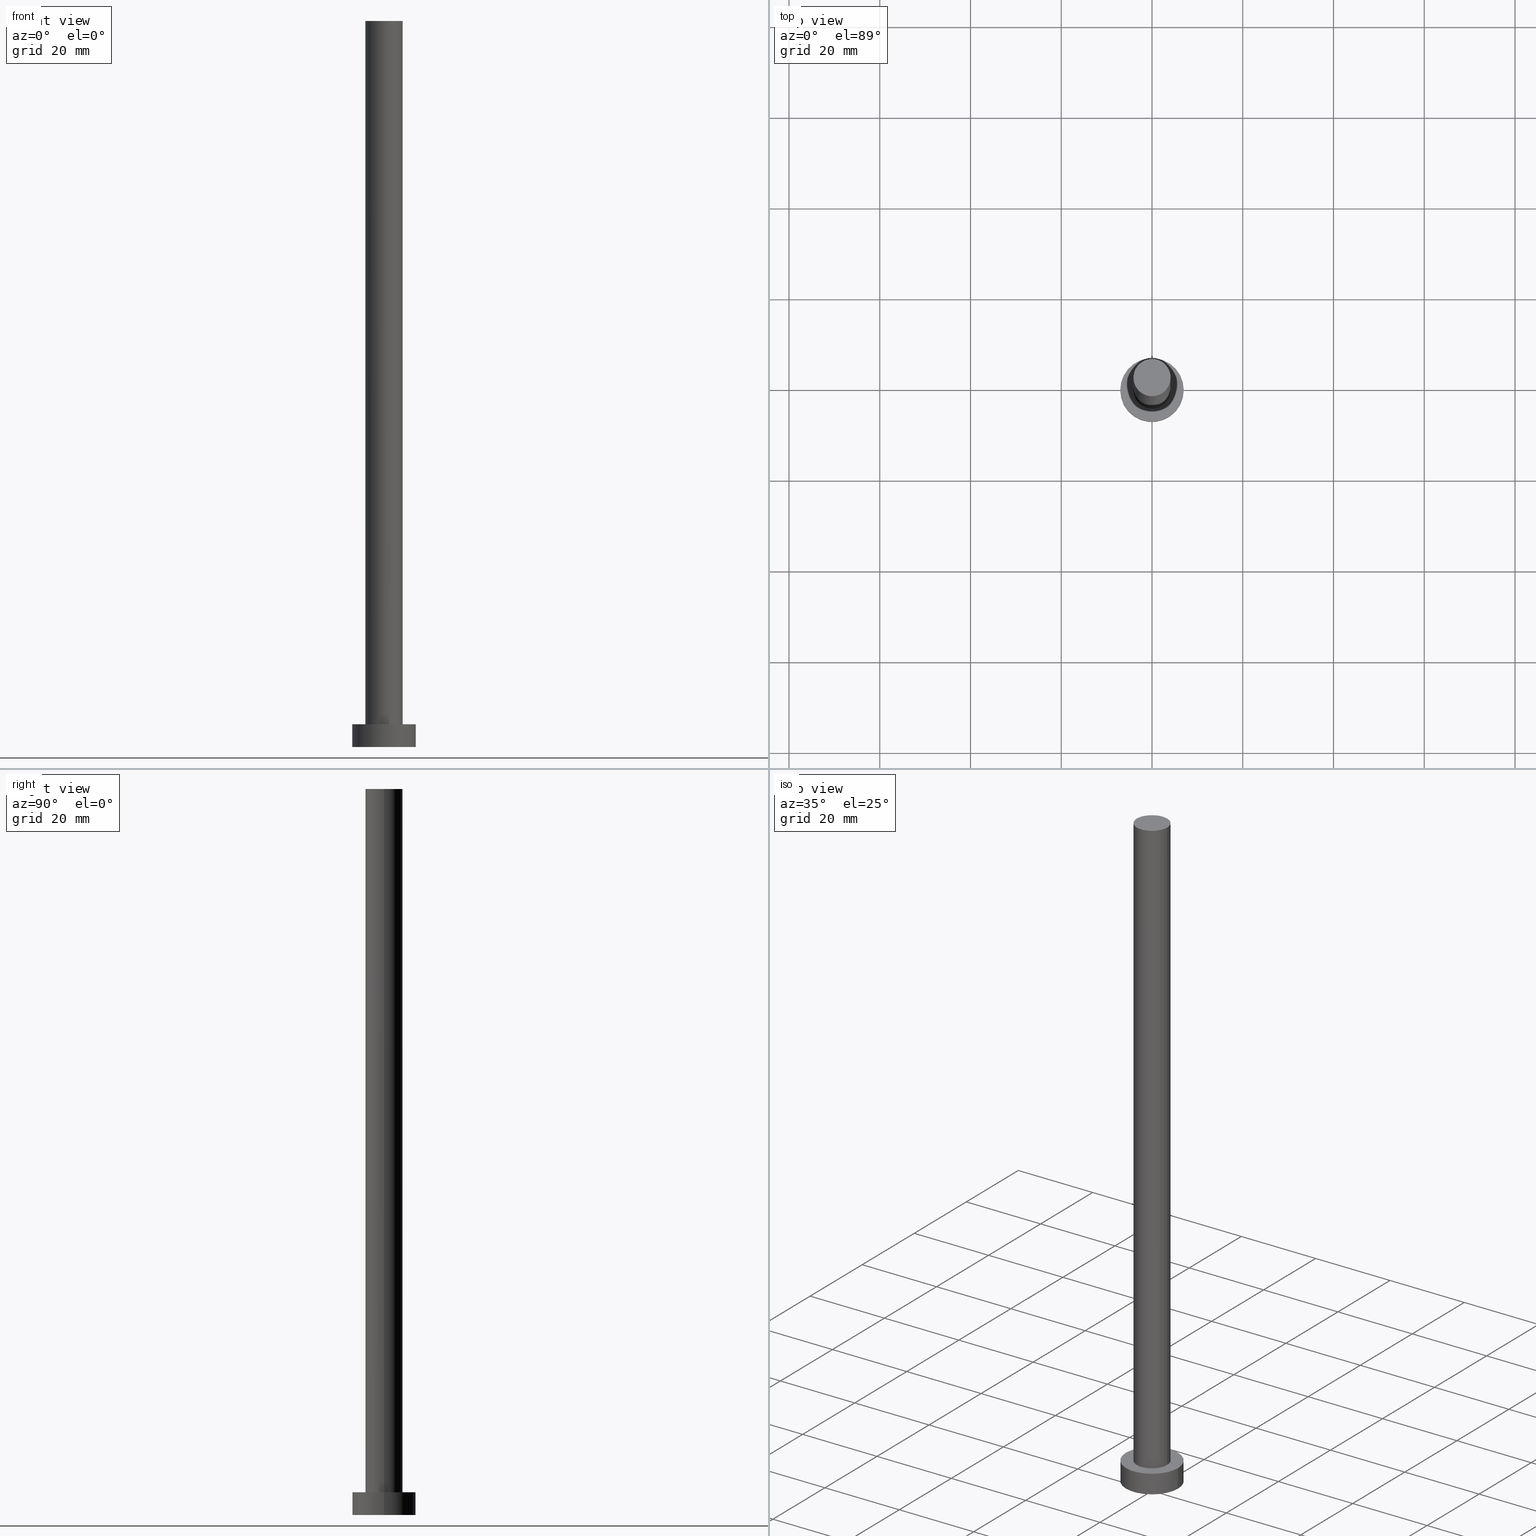
[diagram: canonical four-view strip — front | top / right | iso, engineering-drawing reading convention]
A machine part, canonical four-view strip (front | top / right | iso — engineering-drawing reading convention). The complete STEP part file that produces these views, byte-faithful:
ISO-10303-21;
HEADER;
FILE_DESCRIPTION (( 'STEP AP203' ),
    '1' );
FILE_NAME ('2c0b.STEP',
    '2023-02-13T10:52:53',
    ( '' ),
    ( '' ),
    'SwSTEP 2.0',
    'SolidWorks 2019',
    '' );
FILE_SCHEMA (( 'CONFIG_CONTROL_DESIGN' ));
ENDSEC;

DATA;
#1 = COORDINATED_UNIVERSAL_TIME_OFFSET ( 1, 0, .AHEAD. ) ;
#2 = EDGE_CURVE ( 'NONE', #86, #39, #16, .T. ) ;
#3 = CARTESIAN_POINT ( 'NONE',  ( -7.000000000000000000, 0.000000000000000000, 0.000000000000000000 ) ) ;
#4 = VERTEX_POINT ( 'NONE', #45 ) ;
#5 = AXIS2_PLACEMENT_3D ( 'NONE', #79, #104, #165 ) ;
#6 = CIRCLE ( 'NONE', #221, 4.099999999999999645 ) ;
#7 = ORIENTED_EDGE ( 'NONE', *, *, #182, .T. ) ;
#8 = APPROVAL_PERSON_ORGANIZATION ( #251, #235, #9 ) ;
#9 = APPROVAL_ROLE ( '' ) ;
#10 = ADVANCED_BREP_SHAPE_REPRESENTATION ( '2c0b', ( #85, #44 ), #49 ) ;
#11 = LOCAL_TIME ( 11, 52, 53.00000000000000000, #1 ) ;
#12 = CALENDAR_DATE ( 2023, 13, 2 ) ;
#13 = CIRCLE ( 'NONE', #62, 7.000000000000000000 ) ;
#14 = DATE_TIME_ROLE ( 'classification_date' ) ;
#15 = CARTESIAN_POINT ( 'NONE',  ( 0.000000000000000000, 0.000000000000000000, 5.000000000000000000 ) ) ;
#16 = LINE ( 'NONE', #232, #81 ) ;
#17 = DATE_AND_TIME ( #130, #140 ) ;
#18 = DIRECTION ( 'NONE',  ( -0.000000000000000000, -0.000000000000000000, -1.000000000000000000 ) ) ;
#19 = LINE ( 'NONE', #92, #123 ) ;
#20 = VERTEX_POINT ( 'NONE', #194 ) ;
#21 = DIRECTION ( 'NONE',  ( -0.000000000000000000, -0.000000000000000000, -1.000000000000000000 ) ) ;
#22 = ORIENTED_EDGE ( 'NONE', *, *, #224, .T. ) ;
#23 = AXIS2_PLACEMENT_3D ( 'NONE', #135, #218, #41 ) ;
#24 = DIRECTION ( 'NONE',  ( 0.000000000000000000, 0.000000000000000000, 1.000000000000000000 ) ) ;
#25 = DIRECTION ( 'NONE',  ( 0.000000000000000000, 0.000000000000000000, 1.000000000000000000 ) ) ;
#26 = DIRECTION ( 'NONE',  ( 1.000000000000000000, 0.000000000000000000, -0.000000000000000000 ) ) ;
#27 = DIRECTION ( 'NONE',  ( 1.000000000000000000, 0.000000000000000000, -0.000000000000000000 ) ) ;
#28 = AXIS2_PLACEMENT_3D ( 'NONE', #146, #18, #172 ) ;
#29 = CARTESIAN_POINT ( 'NONE',  ( 7.000000000000000000, 8.572527594031473190E-16, 5.000000000000000000 ) ) ;
#30 = LOCAL_TIME ( 11, 52, 53.00000000000000000, #234 ) ;
#31 = FACE_OUTER_BOUND ( 'NONE', #219, .T. ) ;
#32 = DESIGN_CONTEXT ( 'detailed design', #137, 'design' ) ;
#33 = EDGE_CURVE ( 'NONE', #20, #4, #213, .T. ) ;
#34 = CIRCLE ( 'NONE', #111, 4.099999999999999645 ) ;
#35 = PERSON_AND_ORGANIZATION ( #164, #208 ) ;
#36 = CC_DESIGN_DATE_AND_TIME_ASSIGNMENT ( #114, #169, ( #143 ) ) ;
#37 = DIRECTION ( 'NONE',  ( 0.000000000000000000, 0.000000000000000000, 1.000000000000000000 ) ) ;
#38 = COORDINATED_UNIVERSAL_TIME_OFFSET ( 1, 0, .AHEAD. ) ;
#39 = VERTEX_POINT ( 'NONE', #3 ) ;
#40 = EDGE_CURVE ( 'NONE', #39, #188, #248, .T. ) ;
#41 = DIRECTION ( 'NONE',  ( -1.000000000000000000, 0.000000000000000000, 0.000000000000000000 ) ) ;
#42 = DIRECTION ( 'NONE',  ( 1.000000000000000000, 0.000000000000000000, 0.000000000000000000 ) ) ;
#43 = ORIENTED_EDGE ( 'NONE', *, *, #134, .T. ) ;
#44 = AXIS2_PLACEMENT_3D ( 'NONE', #174, #94, #89 ) ;
#45 = CARTESIAN_POINT ( 'NONE',  ( -4.099999999999999645, 0.000000000000000000, 5.000000000000000000 ) ) ;
#46 = ORIENTED_EDGE ( 'NONE', *, *, #33, .T. ) ;
#47 = APPROVAL ( #192, 'NEUR�EN�' ) ;
#48 = CIRCLE ( 'NONE', #76, 4.099999999999999645 ) ;
#49 =( GEOMETRIC_REPRESENTATION_CONTEXT ( 3 ) GLOBAL_UNCERTAINTY_ASSIGNED_CONTEXT ( ( #207 ) ) GLOBAL_UNIT_ASSIGNED_CONTEXT ( ( #80, #209, #168 ) ) REPRESENTATION_CONTEXT ( 'NONE', 'WORKASPACE' ) );
#50 = CC_DESIGN_PERSON_AND_ORGANIZATION_ASSIGNMENT ( #127, #108, ( #167 ) ) ;
#51 = PERSON_AND_ORGANIZATION_ROLE ( 'creator' ) ;
#52 = LOCAL_TIME ( 11, 52, 53.00000000000000000, #229 ) ;
#53 = APPROVAL_ROLE ( '' ) ;
#54 = CALENDAR_DATE ( 2023, 13, 2 ) ;
#55 = CC_DESIGN_PERSON_AND_ORGANIZATION_ASSIGNMENT ( #69, #151, ( #143 ) ) ;
#56 = ORIENTED_EDGE ( 'NONE', *, *, #2, .F. ) ;
#57 = DIRECTION ( 'NONE',  ( -0.000000000000000000, -0.000000000000000000, -1.000000000000000000 ) ) ;
#58 = AXIS2_PLACEMENT_3D ( 'NONE', #131, #253, #238 ) ;
#59 = CC_DESIGN_SECURITY_CLASSIFICATION ( #167, ( #175 ) ) ;
#60 = CC_DESIGN_APPROVAL ( #47, ( #175 ) ) ;
#61 = PLANE ( 'NONE',  #128 ) ;
#62 = AXIS2_PLACEMENT_3D ( 'NONE', #136, #25, #152 ) ;
#63 = CC_DESIGN_PERSON_AND_ORGANIZATION_ASSIGNMENT ( #35, #190, ( #175 ) ) ;
#64 = PRODUCT_RELATED_PRODUCT_CATEGORY ( 'detail', '', ( #170 ) ) ;
#65 = LINE ( 'NONE', #225, #117 ) ;
#66 = CALENDAR_DATE ( 2023, 13, 2 ) ;
#67 = APPLICATION_PROTOCOL_DEFINITION ( 'international standard', 'config_control_design', 1994, #137 ) ;
#68 = DIRECTION ( 'NONE',  ( -1.000000000000000000, 0.000000000000000000, 0.000000000000000000 ) ) ;
#69 = PERSON_AND_ORGANIZATION ( #164, #208 ) ;
#70 = CARTESIAN_POINT ( 'NONE',  ( -7.000000000000000000, 0.000000000000000000, 5.000000000000000000 ) ) ;
#71 = EDGE_CURVE ( 'NONE', #188, #39, #204, .T. ) ;
#72 = EDGE_LOOP ( 'NONE', ( #22, #7 ) ) ;
#73 = APPLICATION_PROTOCOL_DEFINITION ( 'international standard', 'config_control_design', 1994, #196 ) ;
#74 = ORIENTED_EDGE ( 'NONE', *, *, #115, .F. ) ;
#75 = CYLINDRICAL_SURFACE ( 'NONE', #23, 7.000000000000000000 ) ;
#76 = AXIS2_PLACEMENT_3D ( 'NONE', #214, #176, #112 ) ;
#77 = DIRECTION ( 'NONE',  ( 0.000000000000000000, 0.000000000000000000, 1.000000000000000000 ) ) ;
#78 = DIRECTION ( 'NONE',  ( -1.000000000000000000, 0.000000000000000000, 0.000000000000000000 ) ) ;
#79 = CARTESIAN_POINT ( 'NONE',  ( 0.000000000000000000, 0.000000000000000000, 5.000000000000000000 ) ) ;
#80 =( LENGTH_UNIT ( ) NAMED_UNIT ( * ) SI_UNIT ( .MILLI., .METRE. ) );
#81 = VECTOR ( 'NONE', #200, 1000.000000000000000 ) ;
#82 = CLOSED_SHELL ( 'NONE', ( #149, #155, #202, #252, #105, #186, #162 ) ) ;
#83 = FACE_OUTER_BOUND ( 'NONE', #72, .T. ) ;
#84 = LOCAL_TIME ( 11, 52, 53.00000000000000000, #249 ) ;
#85 = MANIFOLD_SOLID_BREP ( 'P�idat vysunut�m3', #82 ) ;
#86 = VERTEX_POINT ( 'NONE', #70 ) ;
#87 = CC_DESIGN_DATE_AND_TIME_ASSIGNMENT ( #212, #14, ( #167 ) ) ;
#88 = CYLINDRICAL_SURFACE ( 'NONE', #28, 4.099999999999999645 ) ;
#89 = DIRECTION ( 'NONE',  ( 1.000000000000000000, 0.000000000000000000, 0.000000000000000000 ) ) ;
#90 = CARTESIAN_POINT ( 'NONE',  ( 0.000000000000000000, 0.000000000000000000, 5.000000000000000000 ) ) ;
#91 = ORIENTED_EDGE ( 'NONE', *, *, #245, .T. ) ;
#92 = CARTESIAN_POINT ( 'NONE',  ( 7.000000000000000000, 8.572527594031473190E-16, 5.000000000000000000 ) ) ;
#93 = EDGE_LOOP ( 'NONE', ( #163, #132, #166, #56 ) ) ;
#94 = DIRECTION ( 'NONE',  ( 0.000000000000000000, 0.000000000000000000, 1.000000000000000000 ) ) ;
#95 = FACE_OUTER_BOUND ( 'NONE', #201, .T. ) ;
#96 = ORIENTED_EDGE ( 'NONE', *, *, #182, .F. ) ;
#97 = DIRECTION ( 'NONE',  ( 1.000000000000000000, 0.000000000000000000, 0.000000000000000000 ) ) ;
#98 = EDGE_CURVE ( 'NONE', #121, #188, #19, .T. ) ;
#99 = VECTOR ( 'NONE', #239, 1000.000000000000000 ) ;
#100 = CARTESIAN_POINT ( 'NONE',  ( 0.000000000000000000, 0.000000000000000000, 0.000000000000000000 ) ) ;
#101 = APPROVAL ( #215, 'NEUR�EN�' ) ;
#102 = ORIENTED_EDGE ( 'NONE', *, *, #71, .F. ) ;
#103 = EDGE_CURVE ( 'NONE', #121, #86, #13, .T. ) ;
#104 = DIRECTION ( 'NONE',  ( 0.000000000000000000, 0.000000000000000000, 1.000000000000000000 ) ) ;
#105 = ADVANCED_FACE ( 'NONE', ( #125 ), #120, .F. ) ;
#106 = CARTESIAN_POINT ( 'NONE',  ( 0.000000000000000000, 0.000000000000000000, 160.0000000000000000 ) ) ;
#107 = AXIS2_PLACEMENT_3D ( 'NONE', #199, #21, #78 ) ;
#108 = PERSON_AND_ORGANIZATION_ROLE ( 'classification_officer' ) ;
#109 = FACE_OUTER_BOUND ( 'NONE', #156, .T. ) ;
#110 = MECHANICAL_CONTEXT ( 'NONE', #196, 'mechanical' ) ;
#111 = AXIS2_PLACEMENT_3D ( 'NONE', #191, #77, #180 ) ;
#112 = DIRECTION ( 'NONE',  ( 1.000000000000000000, 0.000000000000000000, 0.000000000000000000 ) ) ;
#113 = CC_DESIGN_PERSON_AND_ORGANIZATION_ASSIGNMENT ( #193, #51, ( #175 ) ) ;
#114 = DATE_AND_TIME ( #54, #30 ) ;
#115 = EDGE_CURVE ( 'NONE', #4, #20, #48, .T. ) ;
#116 = CARTESIAN_POINT ( 'NONE',  ( 0.000000000000000000, 0.000000000000000000, 160.0000000000000000 ) ) ;
#117 = VECTOR ( 'NONE', #211, 1000.000000000000000 ) ;
#118 = ORIENTED_EDGE ( 'NONE', *, *, #40, .T. ) ;
#119 = VERTEX_POINT ( 'NONE', #205 ) ;
#120 = PLANE ( 'NONE',  #159 ) ;
#121 = VERTEX_POINT ( 'NONE', #29 ) ;
#122 = CC_DESIGN_APPROVAL ( #101, ( #143 ) ) ;
#123 = VECTOR ( 'NONE', #57, 1000.000000000000000 ) ;
#124 = DIRECTION ( 'NONE',  ( 0.000000000000000000, 0.000000000000000000, 1.000000000000000000 ) ) ;
#125 = FACE_OUTER_BOUND ( 'NONE', #139, .T. ) ;
#126 = EDGE_CURVE ( 'NONE', #86, #121, #223, .T. ) ;
#127 = PERSON_AND_ORGANIZATION ( #164, #208 ) ;
#128 = AXIS2_PLACEMENT_3D ( 'NONE', #106, #124, #189 ) ;
#129 = CYLINDRICAL_SURFACE ( 'NONE', #187, 7.000000000000000000 ) ;
#130 = CALENDAR_DATE ( 2023, 13, 2 ) ;
#131 = CARTESIAN_POINT ( 'NONE',  ( 0.000000000000000000, 0.000000000000000000, 0.000000000000000000 ) ) ;
#132 = ORIENTED_EDGE ( 'NONE', *, *, #98, .T. ) ;
#133 = ORIENTED_EDGE ( 'NONE', *, *, #33, .F. ) ;
#134 = EDGE_CURVE ( 'NONE', #255, #4, #246, .T. ) ;
#135 = CARTESIAN_POINT ( 'NONE',  ( 0.000000000000000000, 0.000000000000000000, 5.000000000000000000 ) ) ;
#136 = CARTESIAN_POINT ( 'NONE',  ( 0.000000000000000000, 0.000000000000000000, 5.000000000000000000 ) ) ;
#137 = APPLICATION_CONTEXT ( 'configuration controlled 3d designs of mechanical parts and assemblies' ) ;
#138 = ORIENTED_EDGE ( 'NONE', *, *, #126, .F. ) ;
#139 = EDGE_LOOP ( 'NONE', ( #184, #102 ) ) ;
#140 = LOCAL_TIME ( 11, 52, 53.00000000000000000, #38 ) ;
#141 = ORIENTED_EDGE ( 'NONE', *, *, #224, .F. ) ;
#142 = AXIS2_PLACEMENT_3D ( 'NONE', #198, #37, #26 ) ;
#143 = PRODUCT_DEFINITION ( 'NEZN�M�', '', #175, #32 ) ;
#144 = PERSON_AND_ORGANIZATION ( #164, #208 ) ;
#145 = SECURITY_CLASSIFICATION_LEVEL ( 'unclassified' ) ;
#146 = CARTESIAN_POINT ( 'NONE',  ( 0.000000000000000000, 0.000000000000000000, 160.0000000000000000 ) ) ;
#147 = APPROVAL_DATE_TIME ( #173, #47 ) ;
#148 = CC_DESIGN_APPROVAL ( #235, ( #167 ) ) ;
#149 = ADVANCED_FACE ( 'NONE', ( #31 ), #88, .T. ) ;
#150 = PERSON_AND_ORGANIZATION_ROLE ( 'design_owner' ) ;
#151 = PERSON_AND_ORGANIZATION_ROLE ( 'creator' ) ;
#152 = DIRECTION ( 'NONE',  ( 1.000000000000000000, 0.000000000000000000, 0.000000000000000000 ) ) ;
#153 = CYLINDRICAL_SURFACE ( 'NONE', #107, 4.099999999999999645 ) ;
#154 = APPROVAL_DATE_TIME ( #185, #235 ) ;
#155 = ADVANCED_FACE ( 'NONE', ( #230 ), #129, .T. ) ;
#156 = EDGE_LOOP ( 'NONE', ( #160, #254 ) ) ;
#157 = PLANE ( 'NONE',  #142 ) ;
#158 = CALENDAR_DATE ( 2023, 13, 2 ) ;
#159 = AXIS2_PLACEMENT_3D ( 'NONE', #100, #203, #27 ) ;
#160 = ORIENTED_EDGE ( 'NONE', *, *, #126, .T. ) ;
#161 = SHAPE_DEFINITION_REPRESENTATION ( #233, #10 ) ;
#162 = ADVANCED_FACE ( 'NONE', ( #83 ), #61, .T. ) ;
#163 = ORIENTED_EDGE ( 'NONE', *, *, #103, .F. ) ;
#164 = PERSON ( 'NEUR�EN�', 'NEUR�EN�', 'NEUR�EN�', ('NEUR�EN�'), ('NEUR�EN�'), ('NEUR�EN�') ) ;
#165 = DIRECTION ( 'NONE',  ( 1.000000000000000000, 0.000000000000000000, 0.000000000000000000 ) ) ;
#166 = ORIENTED_EDGE ( 'NONE', *, *, #71, .T. ) ;
#167 = SECURITY_CLASSIFICATION ( '', '', #145 ) ;
#168 =( NAMED_UNIT ( * ) SI_UNIT ( $, .STERADIAN. ) SOLID_ANGLE_UNIT ( ) );
#169 = DATE_TIME_ROLE ( 'creation_date' ) ;
#170 = PRODUCT ( '2c0b', '2c0b', '', ( #110 ) ) ;
#171 = AXIS2_PLACEMENT_3D ( 'NONE', #197, #179, #42 ) ;
#172 = DIRECTION ( 'NONE',  ( -1.000000000000000000, 0.000000000000000000, 0.000000000000000000 ) ) ;
#173 = DATE_AND_TIME ( #12, #52 ) ;
#174 = CARTESIAN_POINT ( 'NONE',  ( 0.000000000000000000, 0.000000000000000000, 0.000000000000000000 ) ) ;
#175 = PRODUCT_DEFINITION_FORMATION_WITH_SPECIFIED_SOURCE ( 'LIBOVOLN�', '', #170, .NOT_KNOWN. ) ;
#176 = DIRECTION ( 'NONE',  ( 0.000000000000000000, 0.000000000000000000, 1.000000000000000000 ) ) ;
#177 = DIRECTION ( 'NONE',  ( -0.000000000000000000, -0.000000000000000000, -1.000000000000000000 ) ) ;
#178 = APPROVAL_DATE_TIME ( #17, #101 ) ;
#179 = DIRECTION ( 'NONE',  ( 0.000000000000000000, 0.000000000000000000, 1.000000000000000000 ) ) ;
#180 = DIRECTION ( 'NONE',  ( 1.000000000000000000, 0.000000000000000000, 0.000000000000000000 ) ) ;
#181 = CARTESIAN_POINT ( 'NONE',  ( -4.099999999999999645, 0.000000000000000000, 160.0000000000000000 ) ) ;
#182 = EDGE_CURVE ( 'NONE', #119, #255, #34, .T. ) ;
#183 = DIRECTION ( 'NONE',  ( 0.000000000000000000, 0.000000000000000000, 1.000000000000000000 ) ) ;
#184 = ORIENTED_EDGE ( 'NONE', *, *, #40, .F. ) ;
#185 = DATE_AND_TIME ( #158, #11 ) ;
#186 = ADVANCED_FACE ( 'NONE', ( #237 ), #153, .T. ) ;
#187 = AXIS2_PLACEMENT_3D ( 'NONE', #15, #177, #68 ) ;
#188 = VERTEX_POINT ( 'NONE', #244 ) ;
#189 = DIRECTION ( 'NONE',  ( 1.000000000000000000, 0.000000000000000000, -0.000000000000000000 ) ) ;
#190 = PERSON_AND_ORGANIZATION_ROLE ( 'design_supplier' ) ;
#191 = CARTESIAN_POINT ( 'NONE',  ( 0.000000000000000000, 0.000000000000000000, 160.0000000000000000 ) ) ;
#192 = APPROVAL_STATUS ( 'not_yet_approved' ) ;
#193 = PERSON_AND_ORGANIZATION ( #164, #208 ) ;
#194 = CARTESIAN_POINT ( 'NONE',  ( 4.099999999999999645, 5.021051876504147385E-16, 5.000000000000000000 ) ) ;
#195 = CC_DESIGN_PERSON_AND_ORGANIZATION_ASSIGNMENT ( #217, #150, ( #170 ) ) ;
#196 = APPLICATION_CONTEXT ( 'configuration controlled 3d designs of mechanical parts and assemblies' ) ;
#197 = CARTESIAN_POINT ( 'NONE',  ( 0.000000000000000000, 0.000000000000000000, 0.000000000000000000 ) ) ;
#198 = CARTESIAN_POINT ( 'NONE',  ( 0.000000000000000000, 0.000000000000000000, 5.000000000000000000 ) ) ;
#199 = CARTESIAN_POINT ( 'NONE',  ( 0.000000000000000000, 0.000000000000000000, 160.0000000000000000 ) ) ;
#200 = DIRECTION ( 'NONE',  ( -0.000000000000000000, -0.000000000000000000, -1.000000000000000000 ) ) ;
#201 = EDGE_LOOP ( 'NONE', ( #222, #138, #243, #118 ) ) ;
#202 = ADVANCED_FACE ( 'NONE', ( #95 ), #75, .T. ) ;
#203 = DIRECTION ( 'NONE',  ( 0.000000000000000000, 0.000000000000000000, 1.000000000000000000 ) ) ;
#204 = CIRCLE ( 'NONE', #58, 7.000000000000000000 ) ;
#205 = CARTESIAN_POINT ( 'NONE',  ( 4.099999999999999645, 5.021051876504147385E-16, 160.0000000000000000 ) ) ;
#206 = ORIENTED_EDGE ( 'NONE', *, *, #245, .F. ) ;
#207 = UNCERTAINTY_MEASURE_WITH_UNIT (LENGTH_MEASURE( 1.000000000000000082E-05 ), #80, 'distance_accuracy_value', 'NONE');
#208 = ORGANIZATION ( 'NEUR�EN�', 'NEUR�EN�', '' ) ;
#209 =( NAMED_UNIT ( * ) PLANE_ANGLE_UNIT ( ) SI_UNIT ( $, .RADIAN. ) );
#210 = APPROVAL_STATUS ( 'not_yet_approved' ) ;
#211 = DIRECTION ( 'NONE',  ( -0.000000000000000000, -0.000000000000000000, -1.000000000000000000 ) ) ;
#212 = DATE_AND_TIME ( #66, #84 ) ;
#213 = CIRCLE ( 'NONE', #227, 4.099999999999999645 ) ;
#214 = CARTESIAN_POINT ( 'NONE',  ( 0.000000000000000000, 0.000000000000000000, 5.000000000000000000 ) ) ;
#215 = APPROVAL_STATUS ( 'not_yet_approved' ) ;
#216 = ORIENTED_EDGE ( 'NONE', *, *, #115, .T. ) ;
#217 = PERSON_AND_ORGANIZATION ( #164, #208 ) ;
#218 = DIRECTION ( 'NONE',  ( -0.000000000000000000, -0.000000000000000000, -1.000000000000000000 ) ) ;
#219 = EDGE_LOOP ( 'NONE', ( #96, #91, #46, #247 ) ) ;
#220 = CARTESIAN_POINT ( 'NONE',  ( -4.099999999999999645, 0.000000000000000000, 160.0000000000000000 ) ) ;
#221 = AXIS2_PLACEMENT_3D ( 'NONE', #116, #24, #97 ) ;
#222 = ORIENTED_EDGE ( 'NONE', *, *, #98, .F. ) ;
#223 = CIRCLE ( 'NONE', #5, 7.000000000000000000 ) ;
#224 = EDGE_CURVE ( 'NONE', #255, #119, #6, .T. ) ;
#225 = CARTESIAN_POINT ( 'NONE',  ( 4.099999999999999645, 5.021051876504147385E-16, 160.0000000000000000 ) ) ;
#226 = APPROVAL_ROLE ( '' ) ;
#227 = AXIS2_PLACEMENT_3D ( 'NONE', #90, #183, #242 ) ;
#228 = FACE_BOUND ( 'NONE', #236, .T. ) ;
#229 = COORDINATED_UNIVERSAL_TIME_OFFSET ( 1, 0, .AHEAD. ) ;
#230 = FACE_OUTER_BOUND ( 'NONE', #93, .T. ) ;
#231 = PERSON_AND_ORGANIZATION ( #164, #208 ) ;
#232 = CARTESIAN_POINT ( 'NONE',  ( -7.000000000000000000, 0.000000000000000000, 5.000000000000000000 ) ) ;
#233 = PRODUCT_DEFINITION_SHAPE ( 'NONE', 'NONE',  #143 ) ;
#234 = COORDINATED_UNIVERSAL_TIME_OFFSET ( 1, 0, .AHEAD. ) ;
#235 = APPROVAL ( #210, 'NEUR�EN�' ) ;
#236 = EDGE_LOOP ( 'NONE', ( #74, #133 ) ) ;
#237 = FACE_OUTER_BOUND ( 'NONE', #240, .T. ) ;
#238 = DIRECTION ( 'NONE',  ( 1.000000000000000000, 0.000000000000000000, 0.000000000000000000 ) ) ;
#239 = DIRECTION ( 'NONE',  ( -0.000000000000000000, -0.000000000000000000, -1.000000000000000000 ) ) ;
#240 = EDGE_LOOP ( 'NONE', ( #206, #141, #43, #216 ) ) ;
#241 = APPROVAL_PERSON_ORGANIZATION ( #144, #47, #226 ) ;
#242 = DIRECTION ( 'NONE',  ( 1.000000000000000000, 0.000000000000000000, 0.000000000000000000 ) ) ;
#243 = ORIENTED_EDGE ( 'NONE', *, *, #2, .T. ) ;
#244 = CARTESIAN_POINT ( 'NONE',  ( 7.000000000000000000, 8.572527594031473190E-16, 0.000000000000000000 ) ) ;
#245 = EDGE_CURVE ( 'NONE', #119, #20, #65, .T. ) ;
#246 = LINE ( 'NONE', #220, #99 ) ;
#247 = ORIENTED_EDGE ( 'NONE', *, *, #134, .F. ) ;
#248 = CIRCLE ( 'NONE', #171, 7.000000000000000000 ) ;
#249 = COORDINATED_UNIVERSAL_TIME_OFFSET ( 1, 0, .AHEAD. ) ;
#250 = APPROVAL_PERSON_ORGANIZATION ( #231, #101, #53 ) ;
#251 = PERSON_AND_ORGANIZATION ( #164, #208 ) ;
#252 = ADVANCED_FACE ( 'NONE', ( #228, #109 ), #157, .T. ) ;
#253 = DIRECTION ( 'NONE',  ( 0.000000000000000000, 0.000000000000000000, 1.000000000000000000 ) ) ;
#254 = ORIENTED_EDGE ( 'NONE', *, *, #103, .T. ) ;
#255 = VERTEX_POINT ( 'NONE', #181 ) ;
ENDSEC;
END-ISO-10303-21;
